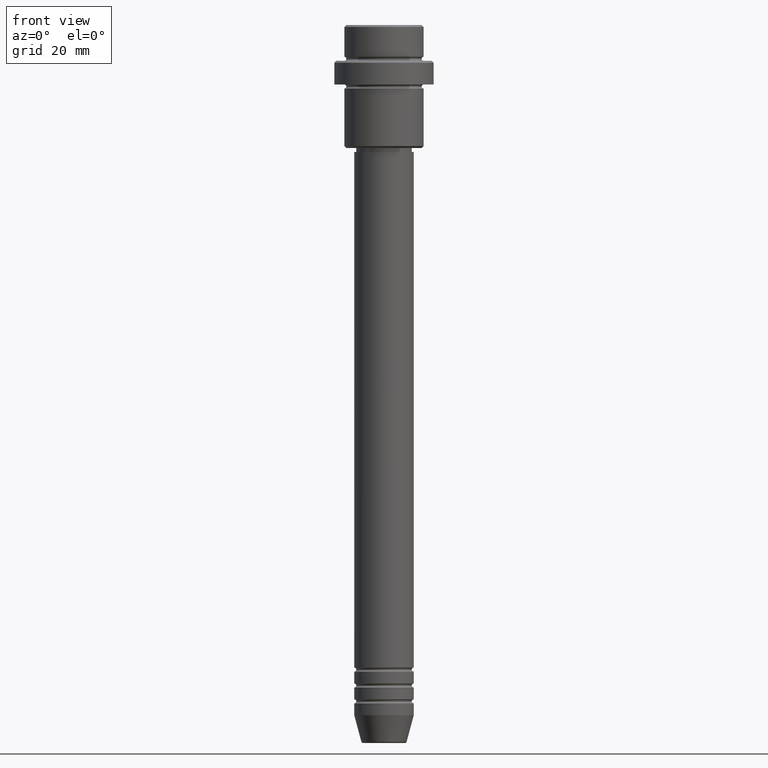
[diagram: clean part render]
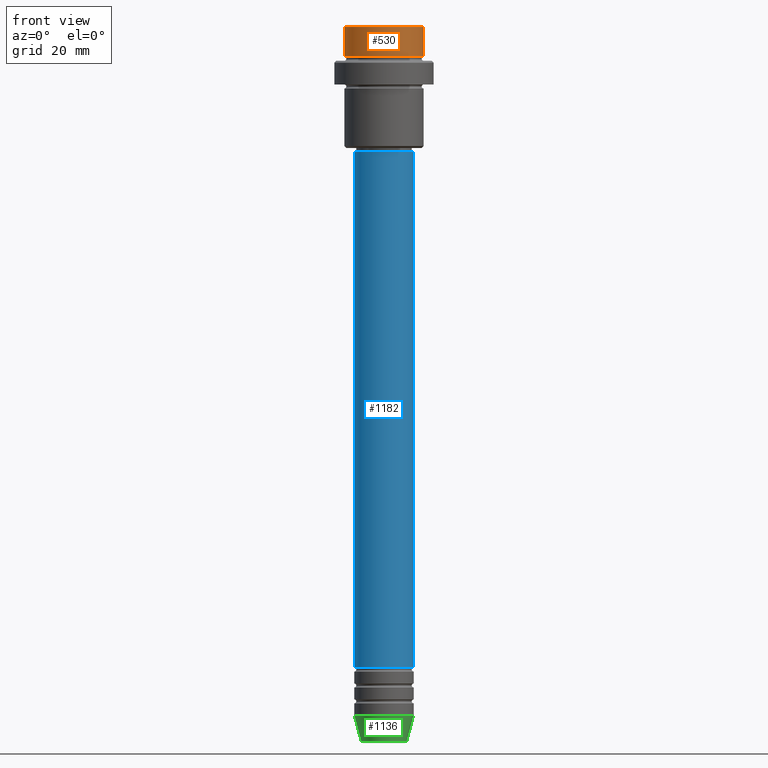
[diagram: same view with three faces highlighted in distinct colors, each labeled with its STEP entity id]
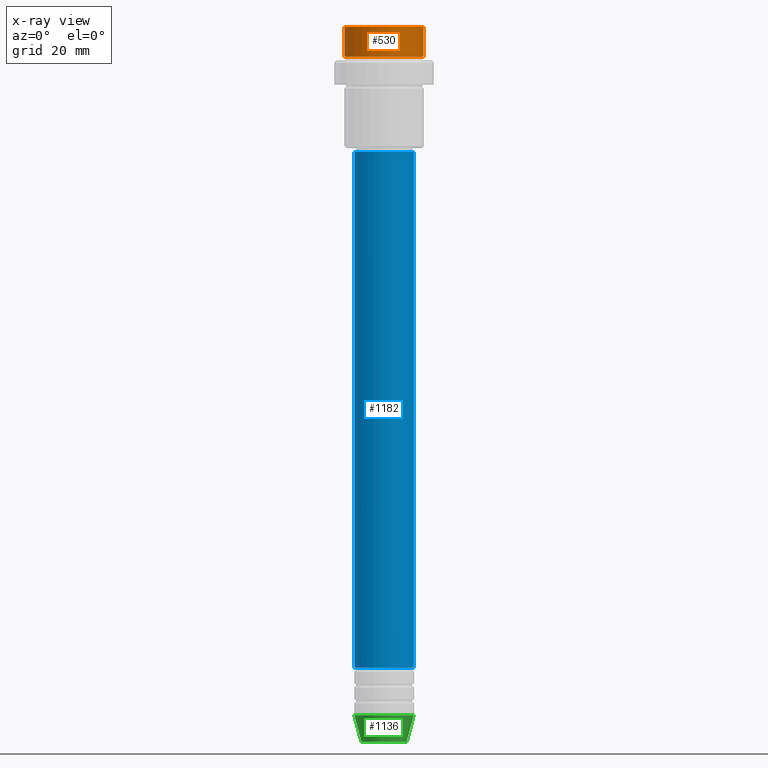
[diagram: x-ray of the same camera — body ghosted, the three highlighted faces saturated]
A machine part, front view with three faces highlighted in distinct colors.
The next image is the same camera in x-ray (body ghosted, the three faces saturated) — at least one of them is partly hidden behind the body in this view.
Their STEP definitions:

[orange] entity #530 — the highlighted cylindrical surface (partial cylindrical patch) has radius 10 mm, axis along (-0, -0, 1).
#3 = DIRECTION ( 'NONE',  ( 1.000000000000000000, 0.000000000000000000, 0.000000000000000000 ) ) ;
#16 = ORIENTED_EDGE ( 'NONE', *, *, #964, .F. ) ;
#92 = EDGE_CURVE ( 'NONE', #255, #1229, #238, .T. ) ;
#116 = DIRECTION ( 'NONE',  ( 1.000000000000000000, 0.000000000000000000, 0.000000000000000000 ) ) ;
#146 = EDGE_CURVE ( 'NONE', #1338, #255, #378, .T. ) ;
#207 = LINE ( 'NONE', #977, #663 ) ;
#221 = DIRECTION ( 'NONE',  ( 0.000000000000000000, 0.000000000000000000, -1.000000000000000000 ) ) ;
#238 = LINE ( 'NONE', #894, #310 ) ;
#255 = VERTEX_POINT ( 'NONE', #1088 ) ;
#274 = CARTESIAN_POINT ( 'NONE',  ( 9.999999999999998224, 0.000000000000000000, -0.4999999999999692468 ) ) ;
#302 = DIRECTION ( 'NONE',  ( -0.000000000000000000, -0.000000000000000000, 1.000000000000000000 ) ) ;
#306 = VERTEX_POINT ( 'NONE', #457 ) ;
#310 = VECTOR ( 'NONE', #1321, 1000.000000000000000 ) ;
#378 = CIRCLE ( 'NONE', #728, 9.999999999999998224 ) ;
#396 = CARTESIAN_POINT ( 'NONE',  ( -9.999999999999998224, 1.224646799147353059E-15, -7.999999999999998224 ) ) ;
#426 = CARTESIAN_POINT ( 'NONE',  ( 0.000000000000000000, 0.000000000000000000, 0.000000000000000000 ) ) ;
#457 = CARTESIAN_POINT ( 'NONE',  ( -9.999999999999998224, 1.224646799147353059E-15, -0.4999999999999692468 ) ) ;
#510 = ORIENTED_EDGE ( 'NONE', *, *, #92, .T. ) ;
#530 = ADVANCED_FACE ( 'NONE', ( #768 ), #850, .T. ) ;
#559 = EDGE_CURVE ( 'NONE', #1229, #306, #1203, .T. ) ;
#574 = CARTESIAN_POINT ( 'NONE',  ( 0.000000000000000000, 0.000000000000000000, -0.4999999999999692468 ) ) ;
#621 = EDGE_LOOP ( 'NONE', ( #16, #942, #510, #1140 ) ) ;
#663 = VECTOR ( 'NONE', #744, 1000.000000000000000 ) ;
#728 = AXIS2_PLACEMENT_3D ( 'NONE', #1094, #1102, #116 ) ;
#744 = DIRECTION ( 'NONE',  ( -0.000000000000000000, -0.000000000000000000, 1.000000000000000000 ) ) ;
#768 = FACE_OUTER_BOUND ( 'NONE', #621, .T. ) ;
#850 = CYLINDRICAL_SURFACE ( 'NONE', #1314, 9.999999999999998224 ) ;
#862 = DIRECTION ( 'NONE',  ( 1.000000000000000000, 0.000000000000000000, 0.000000000000000000 ) ) ;
#894 = CARTESIAN_POINT ( 'NONE',  ( 9.999999999999998224, 0.000000000000000000, 0.000000000000000000 ) ) ;
#942 = ORIENTED_EDGE ( 'NONE', *, *, #146, .T. ) ;
#964 = EDGE_CURVE ( 'NONE', #1338, #306, #207, .T. ) ;
#977 = CARTESIAN_POINT ( 'NONE',  ( -9.999999999999998224, 1.224646799147353059E-15, 0.000000000000000000 ) ) ;
#1088 = CARTESIAN_POINT ( 'NONE',  ( 9.999999999999998224, 0.000000000000000000, -7.999999999999998224 ) ) ;
#1094 = CARTESIAN_POINT ( 'NONE',  ( 0.000000000000000000, 0.000000000000000000, -7.999999999999998224 ) ) ;
#1102 = DIRECTION ( 'NONE',  ( -0.000000000000000000, -0.000000000000000000, 1.000000000000000000 ) ) ;
#1140 = ORIENTED_EDGE ( 'NONE', *, *, #559, .T. ) ;
#1203 = CIRCLE ( 'NONE', #1239, 9.999999999999998224 ) ;
#1229 = VERTEX_POINT ( 'NONE', #274 ) ;
#1239 = AXIS2_PLACEMENT_3D ( 'NONE', #574, #221, #3 ) ;
#1314 = AXIS2_PLACEMENT_3D ( 'NONE', #426, #302, #862 ) ;
#1321 = DIRECTION ( 'NONE',  ( -0.000000000000000000, -0.000000000000000000, 1.000000000000000000 ) ) ;
#1338 = VERTEX_POINT ( 'NONE', #396 ) ;

[blue] entity #1182 — the highlighted cylindrical surface (edge-blend (fillet) strip) has radius 7.5 mm, axis along (-0, -0, 1).
#27 = LINE ( 'NONE', #115, #1329 ) ;
#96 = CARTESIAN_POINT ( 'NONE',  ( -7.500000000000000000, 9.184850993605147944E-16, -31.99999999999998579 ) ) ;
#115 = CARTESIAN_POINT ( 'NONE',  ( -7.500000000000000000, 9.184850993605147944E-16, 0.000000000000000000 ) ) ;
#143 = FACE_OUTER_BOUND ( 'NONE', #1257, .T. ) ;
#223 = AXIS2_PLACEMENT_3D ( 'NONE', #943, #601, #949 ) ;
#232 = CARTESIAN_POINT ( 'NONE',  ( 0.000000000000000000, 0.000000000000000000, -31.99999999999998579 ) ) ;
#304 = ORIENTED_EDGE ( 'NONE', *, *, #545, .F. ) ;
#307 = VERTEX_POINT ( 'NONE', #96 ) ;
#370 = EDGE_CURVE ( 'NONE', #688, #803, #849, .T. ) ;
#414 = VERTEX_POINT ( 'NONE', #1300 ) ;
#429 = ORIENTED_EDGE ( 'NONE', *, *, #696, .F. ) ;
#485 = CYLINDRICAL_SURFACE ( 'NONE', #893, 7.500000000000000000 ) ;
#545 = EDGE_CURVE ( 'NONE', #307, #803, #1290, .T. ) ;
#601 = DIRECTION ( 'NONE',  ( -0.000000000000000000, -0.000000000000000000, 1.000000000000000000 ) ) ;
#617 = CARTESIAN_POINT ( 'NONE',  ( 7.500000000000000000, 0.000000000000000000, -31.99999999999998579 ) ) ;
#662 = AXIS2_PLACEMENT_3D ( 'NONE', #232, #1113, #1216 ) ;
#688 = VERTEX_POINT ( 'NONE', #900 ) ;
#696 = EDGE_CURVE ( 'NONE', #414, #307, #27, .T. ) ;
#704 = VECTOR ( 'NONE', #950, 1000.000000000000000 ) ;
#737 = CARTESIAN_POINT ( 'NONE',  ( 7.500000000000000000, 0.000000000000000000, 0.000000000000000000 ) ) ;
#740 = EDGE_CURVE ( 'NONE', #414, #688, #867, .T. ) ;
#790 = DIRECTION ( 'NONE',  ( -0.000000000000000000, -0.000000000000000000, 1.000000000000000000 ) ) ;
#803 = VERTEX_POINT ( 'NONE', #617 ) ;
#849 = LINE ( 'NONE', #737, #704 ) ;
#867 = CIRCLE ( 'NONE', #223, 7.500000000000000000 ) ;
#893 = AXIS2_PLACEMENT_3D ( 'NONE', #1015, #1134, #1035 ) ;
#898 = ORIENTED_EDGE ( 'NONE', *, *, #370, .T. ) ;
#900 = CARTESIAN_POINT ( 'NONE',  ( 7.500000000000000000, 0.000000000000000000, -161.9999999999998579 ) ) ;
#943 = CARTESIAN_POINT ( 'NONE',  ( 0.000000000000000000, 0.000000000000000000, -161.9999999999998579 ) ) ;
#949 = DIRECTION ( 'NONE',  ( 1.000000000000000000, 0.000000000000000000, 0.000000000000000000 ) ) ;
#950 = DIRECTION ( 'NONE',  ( -0.000000000000000000, -0.000000000000000000, 1.000000000000000000 ) ) ;
#1015 = CARTESIAN_POINT ( 'NONE',  ( 0.000000000000000000, 0.000000000000000000, 0.000000000000000000 ) ) ;
#1035 = DIRECTION ( 'NONE',  ( 1.000000000000000000, 0.000000000000000000, 0.000000000000000000 ) ) ;
#1113 = DIRECTION ( 'NONE',  ( -0.000000000000000000, -0.000000000000000000, 1.000000000000000000 ) ) ;
#1134 = DIRECTION ( 'NONE',  ( -0.000000000000000000, -0.000000000000000000, 1.000000000000000000 ) ) ;
#1182 = ADVANCED_FACE ( 'NONE', ( #143 ), #485, .T. ) ;
#1216 = DIRECTION ( 'NONE',  ( 1.000000000000000000, 0.000000000000000000, 0.000000000000000000 ) ) ;
#1257 = EDGE_LOOP ( 'NONE', ( #429, #1367, #898, #304 ) ) ;
#1290 = CIRCLE ( 'NONE', #662, 7.500000000000000000 ) ;
#1300 = CARTESIAN_POINT ( 'NONE',  ( -7.500000000000000000, 9.184850993605147944E-16, -161.9999999999998579 ) ) ;
#1329 = VECTOR ( 'NONE', #790, 1000.000000000000000 ) ;
#1367 = ORIENTED_EDGE ( 'NONE', *, *, #740, .T. ) ;

[green] entity #1136 — the highlighted conical surface has half-angle 15 deg.
#21 = ORIENTED_EDGE ( 'NONE', *, *, #1306, .T. ) ;
#23 = DIRECTION ( 'NONE',  ( 1.000000000000000000, 0.000000000000000000, 0.000000000000000000 ) ) ;
#42 = ORIENTED_EDGE ( 'NONE', *, *, #209, .T. ) ;
#61 = VERTEX_POINT ( 'NONE', #831 ) ;
#124 = CARTESIAN_POINT ( 'NONE',  ( -7.500000000000000000, 9.184850993605147944E-16, -174.0000000000000000 ) ) ;
#187 = DIRECTION ( 'NONE',  ( -0.000000000000000000, -0.000000000000000000, 1.000000000000000000 ) ) ;
#188 = VERTEX_POINT ( 'NONE', #366 ) ;
#209 = EDGE_CURVE ( 'NONE', #1200, #487, #504, .T. ) ;
#287 = AXIS2_PLACEMENT_3D ( 'NONE', #644, #187, #1170 ) ;
#309 = CARTESIAN_POINT ( 'NONE',  ( 7.500000000000000000, 0.000000000000000000, -174.0000000000000000 ) ) ;
#341 = AXIS2_PLACEMENT_3D ( 'NONE', #669, #793, #997 ) ;
#346 = EDGE_CURVE ( 'NONE', #61, #188, #1209, .T. ) ;
#359 = VECTOR ( 'NONE', #999, 1000.000000000000000 ) ;
#366 = CARTESIAN_POINT ( 'NONE',  ( -7.500000000000000000, 9.184850993605147944E-16, -174.0000000000000000 ) ) ;
#402 = VECTOR ( 'NONE', #940, 1000.000000000000000 ) ;
#403 = CIRCLE ( 'NONE', #287, 5.723655072137191269 ) ;
#463 = CARTESIAN_POINT ( 'NONE',  ( 0.000000000000000000, 0.000000000000000000, -174.0000000000000000 ) ) ;
#469 = CARTESIAN_POINT ( 'NONE',  ( 5.723655072137191269, 0.000000000000000000, -180.6294095225512422 ) ) ;
#484 = EDGE_LOOP ( 'NONE', ( #1133, #21, #42, #854 ) ) ;
#487 = VERTEX_POINT ( 'NONE', #309 ) ;
#504 = LINE ( 'NONE', #604, #402 ) ;
#604 = CARTESIAN_POINT ( 'NONE',  ( 7.500000000000000000, 0.000000000000000000, -174.0000000000000000 ) ) ;
#644 = CARTESIAN_POINT ( 'NONE',  ( 0.000000000000000000, 0.000000000000000000, -180.6294095225512422 ) ) ;
#669 = CARTESIAN_POINT ( 'NONE',  ( 0.000000000000000000, 0.000000000000000000, -174.0000000000000000 ) ) ;
#678 = EDGE_CURVE ( 'NONE', #188, #487, #1075, .T. ) ;
#685 = AXIS2_PLACEMENT_3D ( 'NONE', #463, #1125, #23 ) ;
#777 = FACE_OUTER_BOUND ( 'NONE', #484, .T. ) ;
#793 = DIRECTION ( 'NONE',  ( -0.000000000000000000, -0.000000000000000000, 1.000000000000000000 ) ) ;
#831 = CARTESIAN_POINT ( 'NONE',  ( -5.723655072137191269, 8.097153428560735915E-16, -180.6294095225512422 ) ) ;
#854 = ORIENTED_EDGE ( 'NONE', *, *, #678, .F. ) ;
#940 = DIRECTION ( 'NONE',  ( 0.2588190451025213501, 0.000000000000000000, 0.9659258262890680902 ) ) ;
#997 = DIRECTION ( 'NONE',  ( 1.000000000000000000, 0.000000000000000000, 0.000000000000000000 ) ) ;
#999 = DIRECTION ( 'NONE',  ( -0.2588190451025213501, 3.169619151431772337E-17, 0.9659258262890680902 ) ) ;
#1025 = CONICAL_SURFACE ( 'NONE', #341, 7.500000000000000000, 0.2617993877991500740 ) ;
#1075 = CIRCLE ( 'NONE', #685, 7.500000000000000000 ) ;
#1125 = DIRECTION ( 'NONE',  ( -0.000000000000000000, -0.000000000000000000, 1.000000000000000000 ) ) ;
#1133 = ORIENTED_EDGE ( 'NONE', *, *, #346, .F. ) ;
#1136 = ADVANCED_FACE ( 'NONE', ( #777 ), #1025, .T. ) ;
#1170 = DIRECTION ( 'NONE',  ( 1.000000000000000000, 0.000000000000000000, 0.000000000000000000 ) ) ;
#1200 = VERTEX_POINT ( 'NONE', #469 ) ;
#1209 = LINE ( 'NONE', #124, #359 ) ;
#1306 = EDGE_CURVE ( 'NONE', #61, #1200, #403, .T. ) ;